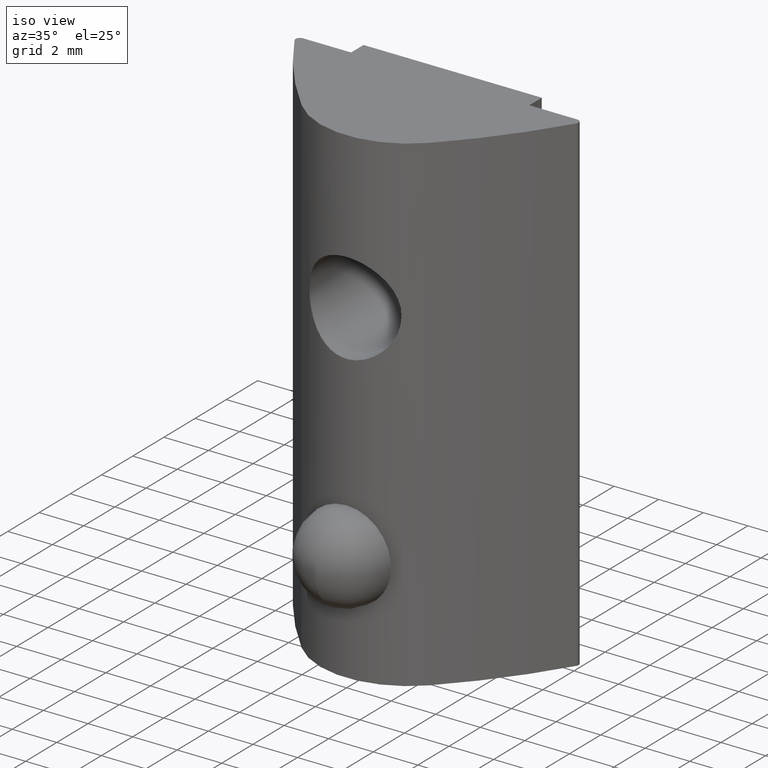
[diagram: clean part render]
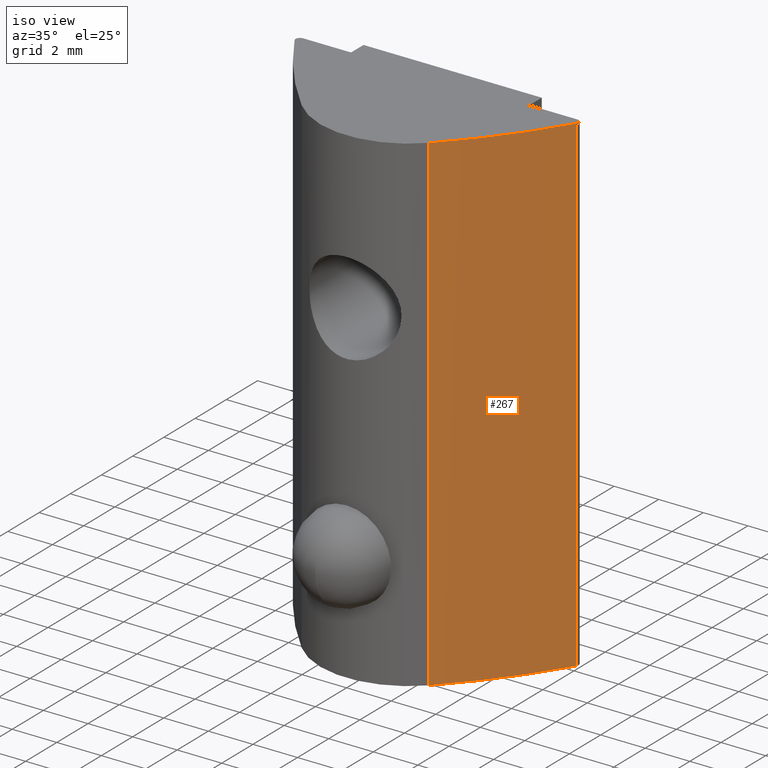
[diagram: same view with one face highlighted and labeled with its STEP entity id]
A machine part, iso view. The second image highlights one B-rep face of the part: STEP entity #267.
In plain terms, the highlighted cylindrical surface (partial cylindrical patch) has radius 24.0398 mm, axis along (0, 0, -1).
Its self-contained STEP definition (entity closure, byte-faithful):
#26=LINE('',#466,#47);
#30=LINE('',#476,#51);
#47=VECTOR('',#351,22.);
#51=VECTOR('',#361,22.);
#78=CIRCLE('',#290,24.0397940201209);
#81=CIRCLE('',#296,24.0397940201209);
#93=FACE_OUTER_BOUND('',#110,.T.);
#110=EDGE_LOOP('',(#214,#215,#216,#217));
#132=VERTEX_POINT('',#451);
#133=VERTEX_POINT('',#453);
#138=VERTEX_POINT('',#465);
#141=VERTEX_POINT('',#475);
#159=EDGE_CURVE('',#133,#132,#78,.T.);
#165=EDGE_CURVE('',#133,#138,#26,.T.);
#170=EDGE_CURVE('',#141,#132,#30,.T.);
#171=EDGE_CURVE('',#138,#141,#81,.T.);
#214=ORIENTED_EDGE('',*,*,#165,.F.);
#215=ORIENTED_EDGE('',*,*,#159,.T.);
#216=ORIENTED_EDGE('',*,*,#170,.F.);
#217=ORIENTED_EDGE('',*,*,#171,.F.);
#255=CYLINDRICAL_SURFACE('',#295,24.0397940201209);
#267=ADVANCED_FACE('',(#93),#255,.T.);
#290=AXIS2_PLACEMENT_3D('',#454,#341,#342);
#295=AXIS2_PLACEMENT_3D('',#474,#359,#360);
#296=AXIS2_PLACEMENT_3D('',#477,#362,#363);
#341=DIRECTION('center_axis',(0.,0.,-1.));
#342=DIRECTION('ref_axis',(0.866025403784438,-0.500000000000001,0.));
#351=DIRECTION('',(0.,0.,-1.));
#359=DIRECTION('center_axis',(0.,0.,-1.));
#360=DIRECTION('ref_axis',(0.866025403784438,-0.500000000000001,0.));
#361=DIRECTION('',(0.,0.,1.));
#362=DIRECTION('center_axis',(0.,0.,-1.));
#363=DIRECTION('ref_axis',(0.866025403784438,-0.500000000000001,0.));
#451=CARTESIAN_POINT('',(2.85812764518296,1.20158859996588,22.));
#453=CARTESIAN_POINT('',(6.32238630786788,5.69748319973111,22.));
#454=CARTESIAN_POINT('Origin',(-14.3190723231699,18.0198970100604,22.));
#465=CARTESIAN_POINT('',(6.32238630786788,5.69748319973111,0.));
#466=CARTESIAN_POINT('',(6.32238630786788,5.69748319973111,0.));
#474=CARTESIAN_POINT('Origin',(-14.3190723231699,18.0198970100604,0.));
#475=CARTESIAN_POINT('',(2.85812764518296,1.20158859996588,0.));
#476=CARTESIAN_POINT('',(2.85812764518296,1.20158859996588,0.));
#477=CARTESIAN_POINT('Origin',(-14.3190723231699,18.0198970100604,0.));